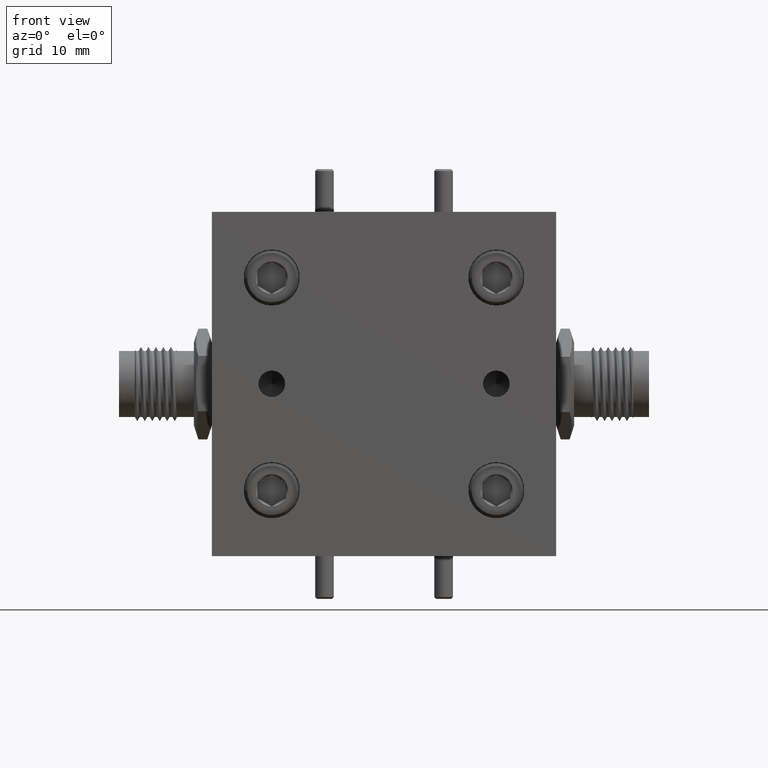
[diagram: clean part render]
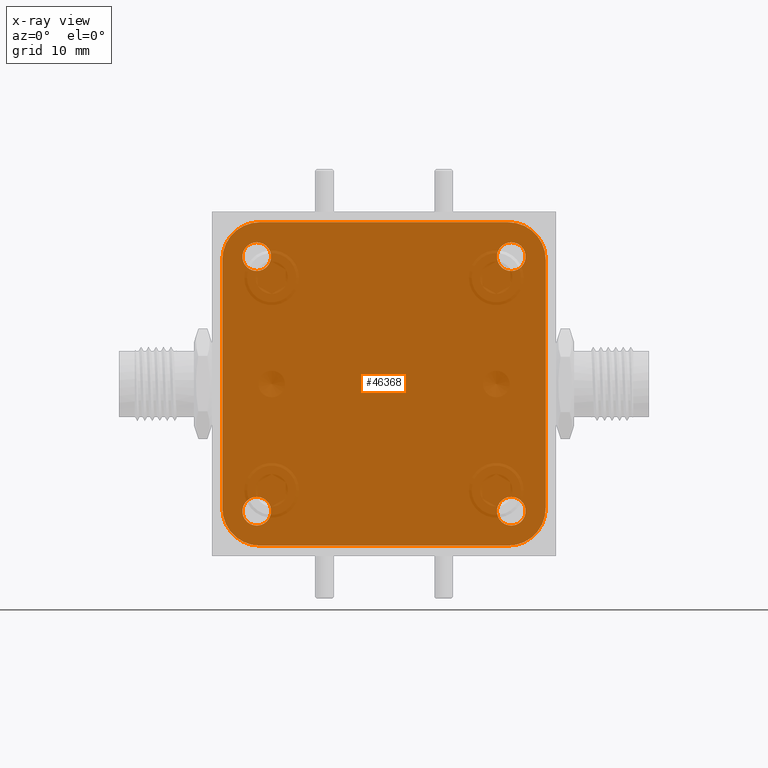
[diagram: x-ray — body ghosted, one internal face saturated and labeled with its STEP entity id]
A machine part, front view, then the same camera in x-ray: the body is ghosted and one INTERNAL B-rep face — a face not visible from any outside direction — is saturated and labeled: STEP entity #46368.
In plain terms, the highlighted planar face has unit normal (0, 1, 0).
Its self-contained STEP definition (entity closure, byte-faithful):
#166 = ORIENTED_EDGE ( 'NONE', *, *, #22459, .F. ) ;
#232 = VECTOR ( 'NONE', #36152, 39.37007874015748143 ) ;
#668 = DIRECTION ( 'NONE',  ( 0.0000000000000000000, 0.0000000000000000000, 1.000000000000000000 ) ) ;
#967 = CARTESIAN_POINT ( 'NONE',  ( 0.4250000000000001554, 0.4269999999999999907, 0.4250000000000000444 ) ) ;
#1240 = VECTOR ( 'NONE', #9302, 39.37007874015748143 ) ;
#1264 = VERTEX_POINT ( 'NONE', #11783 ) ;
#1994 = ORIENTED_EDGE ( 'NONE', *, *, #11224, .F. ) ;
#2125 = VERTEX_POINT ( 'NONE', #4785 ) ;
#2281 = FACE_BOUND ( 'NONE', #10472, .T. ) ;
#2732 = CARTESIAN_POINT ( 'NONE',  ( 0.4150000000000003131, 0.4269999999999999907, -0.4149999999999995359 ) ) ;
#4305 = CARTESIAN_POINT ( 'NONE',  ( -0.4249999999999997669, 0.4269999999999999907, -0.4249999999999998224 ) ) ;
#4359 = CARTESIAN_POINT ( 'NONE',  ( 0.4150000000000003131, 0.4269999999999999907, 0.4149999999999995914 ) ) ;
#4785 = CARTESIAN_POINT ( 'NONE',  ( 0.4250000000000001554, 0.4269999999999999907, 0.3770000000000000573 ) ) ;
#4801 = AXIS2_PLACEMENT_3D ( 'NONE', #967, #5801, #48215 ) ;
#5325 = CARTESIAN_POINT ( 'NONE',  ( 0.4250000000000001554, 0.4269999999999999907, -0.4729999999999999205 ) ) ;
#5464 = CARTESIAN_POINT ( 'NONE',  ( 0.4150000000000003686, 0.4269999999999999907, 0.5399999999999995914 ) ) ;
#5742 = DIRECTION ( 'NONE',  ( 0.0000000000000000000, 0.0000000000000000000, 1.000000000000000000 ) ) ;
#5801 = DIRECTION ( 'NONE',  ( -0.0000000000000000000, 1.000000000000000000, -0.0000000000000000000 ) ) ;
#5911 = VERTEX_POINT ( 'NONE', #25168 ) ;
#6099 = CARTESIAN_POINT ( 'NONE',  ( -0.4149999999999998135, 0.4269999999999999907, 0.5400000000000000355 ) ) ;
#6900 = CARTESIAN_POINT ( 'NONE',  ( -0.4149999999999998690, 0.4269999999999999907, -0.4149999999999998135 ) ) ;
#7041 = EDGE_LOOP ( 'NONE', ( #48807, #17877 ) ) ;
#7149 = AXIS2_PLACEMENT_3D ( 'NONE', #2732, #41529, #14306 ) ;
#7306 = EDGE_CURVE ( 'NONE', #38475, #48439, #8808, .T. ) ;
#7667 = EDGE_CURVE ( 'NONE', #23442, #35098, #7997, .T. ) ;
#7720 = AXIS2_PLACEMENT_3D ( 'NONE', #6900, #11539, #11022 ) ;
#7997 = CIRCLE ( 'NONE', #27719, 0.04800000000000000794 ) ;
#8131 = VERTEX_POINT ( 'NONE', #36296 ) ;
#8628 = ORIENTED_EDGE ( 'NONE', *, *, #7667, .T. ) ;
#8808 = CIRCLE ( 'NONE', #7149, 0.1250000000000000000 ) ;
#9302 = DIRECTION ( 'NONE',  ( 1.000000000000000000, -0.0000000000000000000, -5.058977766044931886E-16 ) ) ;
#9511 = EDGE_LOOP ( 'NONE', ( #166, #26691, #26143, #50875, #46454, #34588, #1994, #20451 ) ) ;
#10231 = DIRECTION ( 'NONE',  ( 0.0000000000000000000, 1.000000000000000000, 0.0000000000000000000 ) ) ;
#10355 = CARTESIAN_POINT ( 'NONE',  ( -0.4249999999999998224, 0.4269999999999999907, 0.4730000000000001981 ) ) ;
#10472 = EDGE_LOOP ( 'NONE', ( #30203, #47904 ) ) ;
#10985 = DIRECTION ( 'NONE',  ( -0.0000000000000000000, -1.000000000000000000, -0.0000000000000000000 ) ) ;
#11022 = DIRECTION ( 'NONE',  ( 0.0000000000000000000, 0.0000000000000000000, 1.000000000000000000 ) ) ;
#11224 = EDGE_CURVE ( 'NONE', #43608, #37625, #44772, .T. ) ;
#11357 = EDGE_LOOP ( 'NONE', ( #44138, #8628 ) ) ;
#11526 = EDGE_CURVE ( 'NONE', #15426, #2125, #32403, .T. ) ;
#11539 = DIRECTION ( 'NONE',  ( -0.0000000000000000000, -1.000000000000000000, -0.0000000000000000000 ) ) ;
#11715 = CARTESIAN_POINT ( 'NONE',  ( 0.5400000000000002576, 0.4269999999999999907, -0.4149999999999995359 ) ) ;
#11783 = CARTESIAN_POINT ( 'NONE',  ( 0.5400000000000002576, 0.4269999999999999907, 0.4149999999999995914 ) ) ;
#12637 = EDGE_CURVE ( 'NONE', #1264, #37625, #27699, .T. ) ;
#13263 = DIRECTION ( 'NONE',  ( 0.0000000000000000000, 0.0000000000000000000, 1.000000000000000000 ) ) ;
#13324 = LINE ( 'NONE', #29008, #26077 ) ;
#13607 = EDGE_CURVE ( 'NONE', #5911, #18038, #34803, .T. ) ;
#13720 = CIRCLE ( 'NONE', #36703, 0.04800000000000000794 ) ;
#14306 = DIRECTION ( 'NONE',  ( 0.0000000000000000000, 0.0000000000000000000, 1.000000000000000000 ) ) ;
#14700 = DIRECTION ( 'NONE',  ( -0.0000000000000000000, 1.000000000000000000, -0.0000000000000000000 ) ) ;
#15151 = LINE ( 'NONE', #39016, #20138 ) ;
#15426 = VERTEX_POINT ( 'NONE', #47968 ) ;
#16334 = CIRCLE ( 'NONE', #4801, 0.04800000000000000794 ) ;
#16385 = LINE ( 'NONE', #24341, #232 ) ;
#17033 = CARTESIAN_POINT ( 'NONE',  ( 0.5400000000000002576, 0.4269999999999999907, 0.5399999999999995914 ) ) ;
#17352 = DIRECTION ( 'NONE',  ( 0.0000000000000000000, 0.0000000000000000000, 1.000000000000000000 ) ) ;
#17873 = CARTESIAN_POINT ( 'NONE',  ( -0.4249999999999998224, 0.4269999999999999907, 0.4250000000000001554 ) ) ;
#17877 = ORIENTED_EDGE ( 'NONE', *, *, #46612, .T. ) ;
#17957 = FACE_BOUND ( 'NONE', #31978, .T. ) ;
#18038 = VERTEX_POINT ( 'NONE', #30723 ) ;
#18414 = CARTESIAN_POINT ( 'NONE',  ( 0.4150000000000003131, 0.4269999999999999907, -0.5399999999999995914 ) ) ;
#18736 = AXIS2_PLACEMENT_3D ( 'NONE', #45437, #10231, #49535 ) ;
#19132 = VERTEX_POINT ( 'NONE', #45133 ) ;
#20138 = VECTOR ( 'NONE', #27981, 39.37007874015748143 ) ;
#20183 = CARTESIAN_POINT ( 'NONE',  ( -0.4249999999999998224, 0.4269999999999999907, 0.4250000000000001554 ) ) ;
#20232 = DIRECTION ( 'NONE',  ( -0.0000000000000000000, 1.000000000000000000, -0.0000000000000000000 ) ) ;
#20451 = ORIENTED_EDGE ( 'NONE', *, *, #44247, .T. ) ;
#21022 = ORIENTED_EDGE ( 'NONE', *, *, #44472, .T. ) ;
#22396 = CARTESIAN_POINT ( 'NONE',  ( 0.4250000000000001554, 0.4269999999999999907, 0.4250000000000000444 ) ) ;
#22459 = EDGE_CURVE ( 'NONE', #5911, #29060, #16385, .T. ) ;
#22561 = FACE_OUTER_BOUND ( 'NONE', #9511, .T. ) ;
#22656 = DIRECTION ( 'NONE',  ( 0.0000000000000000000, 0.0000000000000000000, 1.000000000000000000 ) ) ;
#23372 = ORIENTED_EDGE ( 'NONE', *, *, #11526, .T. ) ;
#23442 = VERTEX_POINT ( 'NONE', #38732 ) ;
#24257 = CIRCLE ( 'NONE', #30834, 0.04800000000000000794 ) ;
#24341 = CARTESIAN_POINT ( 'NONE',  ( -0.5399999999999998135, 0.4269999999999999907, 0.5400000000000001465 ) ) ;
#24647 = DIRECTION ( 'NONE',  ( 0.0000000000000000000, 0.0000000000000000000, -1.000000000000000000 ) ) ;
#24838 = CARTESIAN_POINT ( 'NONE',  ( -0.4249999999999997669, 0.4269999999999999907, -0.3769999999999998352 ) ) ;
#25168 = CARTESIAN_POINT ( 'NONE',  ( -0.5399999999999998135, 0.4269999999999999907, -0.4149999999999998135 ) ) ;
#25284 = CARTESIAN_POINT ( 'NONE',  ( 0.4250000000000001554, 0.4269999999999999907, -0.4249999999999999334 ) ) ;
#26077 = VECTOR ( 'NONE', #24647, 39.37007874015748143 ) ;
#26143 = ORIENTED_EDGE ( 'NONE', *, *, #39539, .F. ) ;
#26671 = DIRECTION ( 'NONE',  ( 0.0000000000000000000, 0.0000000000000000000, 1.000000000000000000 ) ) ;
#26691 = ORIENTED_EDGE ( 'NONE', *, *, #13607, .T. ) ;
#27625 = EDGE_CURVE ( 'NONE', #44448, #8131, #24257, .T. ) ;
#27699 = CIRCLE ( 'NONE', #37554, 0.1249999999999999584 ) ;
#27719 = AXIS2_PLACEMENT_3D ( 'NONE', #20183, #35856, #668 ) ;
#27981 = DIRECTION ( 'NONE',  ( -1.000000000000000000, 0.0000000000000000000, -2.529488883022465943E-16 ) ) ;
#28638 = CARTESIAN_POINT ( 'NONE',  ( -0.4249999999999997669, 0.4269999999999999907, -0.4249999999999998224 ) ) ;
#29008 = CARTESIAN_POINT ( 'NONE',  ( 0.5400000000000002576, 0.4269999999999999907, 0.5399999999999995914 ) ) ;
#29060 = VERTEX_POINT ( 'NONE', #44277 ) ;
#29687 = DIRECTION ( 'NONE',  ( -0.0000000000000000000, 1.000000000000000000, -0.0000000000000000000 ) ) ;
#29774 = PLANE ( 'NONE',  #18736 ) ;
#29955 = AXIS2_PLACEMENT_3D ( 'NONE', #22396, #14700, #22656 ) ;
#30045 = VERTEX_POINT ( 'NONE', #5325 ) ;
#30203 = ORIENTED_EDGE ( 'NONE', *, *, #50438, .T. ) ;
#30231 = CIRCLE ( 'NONE', #39236, 0.1249999999999999584 ) ;
#30418 = CIRCLE ( 'NONE', #36959, 0.04800000000000000794 ) ;
#30723 = CARTESIAN_POINT ( 'NONE',  ( -0.4149999999999998135, 0.4269999999999999907, -0.5399999999999998135 ) ) ;
#30834 = AXIS2_PLACEMENT_3D ( 'NONE', #28638, #39187, #44307 ) ;
#30976 = AXIS2_PLACEMENT_3D ( 'NONE', #25284, #48407, #5742 ) ;
#31978 = EDGE_LOOP ( 'NONE', ( #23372, #21022 ) ) ;
#32229 = EDGE_CURVE ( 'NONE', #30045, #19132, #36705, .T. ) ;
#32403 = CIRCLE ( 'NONE', #29955, 0.04800000000000000794 ) ;
#33628 = FACE_BOUND ( 'NONE', #11357, .T. ) ;
#34588 = ORIENTED_EDGE ( 'NONE', *, *, #12637, .T. ) ;
#34803 = CIRCLE ( 'NONE', #7720, 0.1250000000000000000 ) ;
#35098 = VERTEX_POINT ( 'NONE', #10355 ) ;
#35191 = DIRECTION ( 'NONE',  ( -1.639108796198558523E-15, 0.0000000000000000000, 1.000000000000000000 ) ) ;
#35856 = DIRECTION ( 'NONE',  ( -0.0000000000000000000, 1.000000000000000000, -0.0000000000000000000 ) ) ;
#36152 = DIRECTION ( 'NONE',  ( -0.0000000000000000000, -0.0000000000000000000, 1.000000000000000000 ) ) ;
#36296 = CARTESIAN_POINT ( 'NONE',  ( -0.4249999999999997669, 0.4269999999999999907, -0.4729999999999998650 ) ) ;
#36703 = AXIS2_PLACEMENT_3D ( 'NONE', #17873, #29687, #17352 ) ;
#36705 = CIRCLE ( 'NONE', #30976, 0.04800000000000000794 ) ;
#36773 = CIRCLE ( 'NONE', #49908, 0.04800000000000000794 ) ;
#36959 = AXIS2_PLACEMENT_3D ( 'NONE', #43149, #47507, #42193 ) ;
#37554 = AXIS2_PLACEMENT_3D ( 'NONE', #4359, #42889, #35191 ) ;
#37625 = VERTEX_POINT ( 'NONE', #5464 ) ;
#38229 = CARTESIAN_POINT ( 'NONE',  ( -0.4149999999999998690, 0.4269999999999999907, 0.4150000000000000355 ) ) ;
#38475 = VERTEX_POINT ( 'NONE', #18414 ) ;
#38732 = CARTESIAN_POINT ( 'NONE',  ( -0.4249999999999998224, 0.4269999999999999907, 0.3770000000000001683 ) ) ;
#39016 = CARTESIAN_POINT ( 'NONE',  ( 0.5400000000000002576, 0.4269999999999999907, -0.5399999999999995914 ) ) ;
#39187 = DIRECTION ( 'NONE',  ( -0.0000000000000000000, 1.000000000000000000, -0.0000000000000000000 ) ) ;
#39236 = AXIS2_PLACEMENT_3D ( 'NONE', #38229, #10985, #26671 ) ;
#39539 = EDGE_CURVE ( 'NONE', #38475, #18038, #15151, .T. ) ;
#41529 = DIRECTION ( 'NONE',  ( -0.0000000000000000000, -1.000000000000000000, -0.0000000000000000000 ) ) ;
#42193 = DIRECTION ( 'NONE',  ( 0.0000000000000000000, 0.0000000000000000000, 1.000000000000000000 ) ) ;
#42840 = EDGE_CURVE ( 'NONE', #35098, #23442, #13720, .T. ) ;
#42889 = DIRECTION ( 'NONE',  ( -0.0000000000000000000, -1.000000000000000000, -0.0000000000000000000 ) ) ;
#43149 = CARTESIAN_POINT ( 'NONE',  ( 0.4250000000000001554, 0.4269999999999999907, -0.4249999999999999334 ) ) ;
#43496 = EDGE_CURVE ( 'NONE', #1264, #48439, #13324, .T. ) ;
#43608 = VERTEX_POINT ( 'NONE', #6099 ) ;
#44138 = ORIENTED_EDGE ( 'NONE', *, *, #42840, .T. ) ;
#44247 = EDGE_CURVE ( 'NONE', #43608, #29060, #30231, .T. ) ;
#44277 = CARTESIAN_POINT ( 'NONE',  ( -0.5399999999999998135, 0.4269999999999999907, 0.4150000000000000355 ) ) ;
#44307 = DIRECTION ( 'NONE',  ( 0.0000000000000000000, 0.0000000000000000000, 1.000000000000000000 ) ) ;
#44448 = VERTEX_POINT ( 'NONE', #24838 ) ;
#44472 = EDGE_CURVE ( 'NONE', #2125, #15426, #16334, .T. ) ;
#44772 = LINE ( 'NONE', #17033, #1240 ) ;
#45133 = CARTESIAN_POINT ( 'NONE',  ( 0.4250000000000001554, 0.4269999999999999907, -0.3769999999999998908 ) ) ;
#45437 = CARTESIAN_POINT ( 'NONE',  ( 2.048885995248197414E-16, 0.4269999999999999907, 1.365923996832131609E-16 ) ) ;
#46368 = ADVANCED_FACE ( 'NONE', ( #49043, #17957, #2281, #33628, #22561 ), #29774, .F. ) ;
#46454 = ORIENTED_EDGE ( 'NONE', *, *, #43496, .F. ) ;
#46612 = EDGE_CURVE ( 'NONE', #8131, #44448, #36773, .T. ) ;
#47507 = DIRECTION ( 'NONE',  ( -0.0000000000000000000, 1.000000000000000000, -0.0000000000000000000 ) ) ;
#47904 = ORIENTED_EDGE ( 'NONE', *, *, #32229, .T. ) ;
#47968 = CARTESIAN_POINT ( 'NONE',  ( 0.4250000000000001554, 0.4269999999999999907, 0.4730000000000000315 ) ) ;
#48215 = DIRECTION ( 'NONE',  ( 0.0000000000000000000, 0.0000000000000000000, 1.000000000000000000 ) ) ;
#48407 = DIRECTION ( 'NONE',  ( -0.0000000000000000000, 1.000000000000000000, -0.0000000000000000000 ) ) ;
#48439 = VERTEX_POINT ( 'NONE', #11715 ) ;
#48807 = ORIENTED_EDGE ( 'NONE', *, *, #27625, .T. ) ;
#49043 = FACE_BOUND ( 'NONE', #7041, .T. ) ;
#49535 = DIRECTION ( 'NONE',  ( 0.0000000000000000000, -0.0000000000000000000, 1.000000000000000000 ) ) ;
#49908 = AXIS2_PLACEMENT_3D ( 'NONE', #4305, #20232, #13263 ) ;
#50438 = EDGE_CURVE ( 'NONE', #19132, #30045, #30418, .T. ) ;
#50875 = ORIENTED_EDGE ( 'NONE', *, *, #7306, .T. ) ;